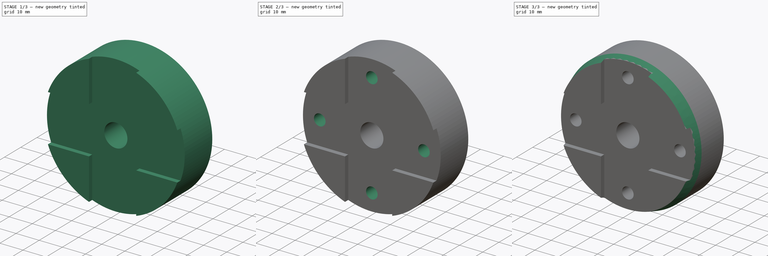
[diagram: build sequence overview — one tinted view per stage of 3, left to right]
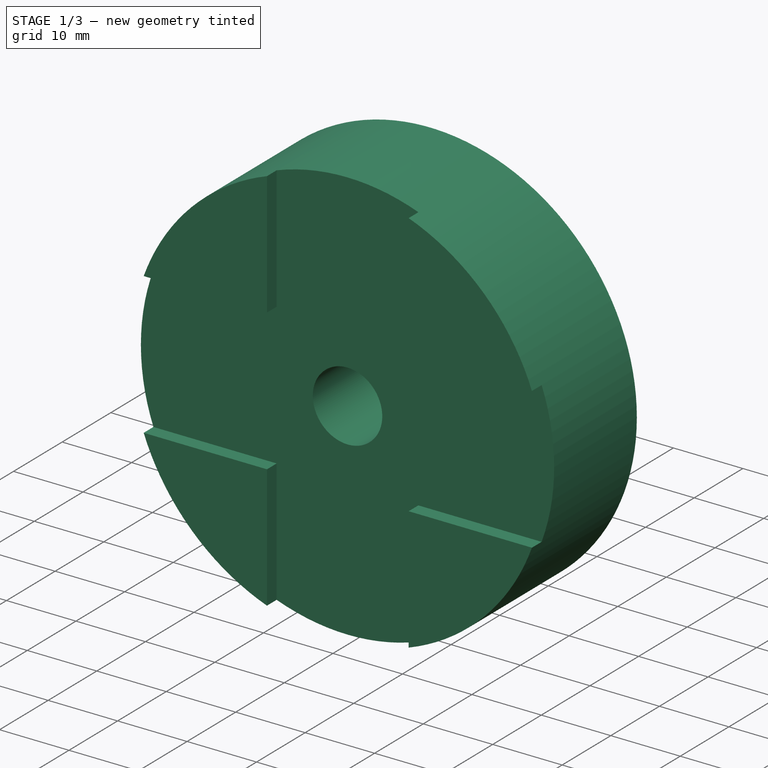
[diagram: stage 1 of 3 — iso view after this stage's code; geometry added in this stage tinted green]
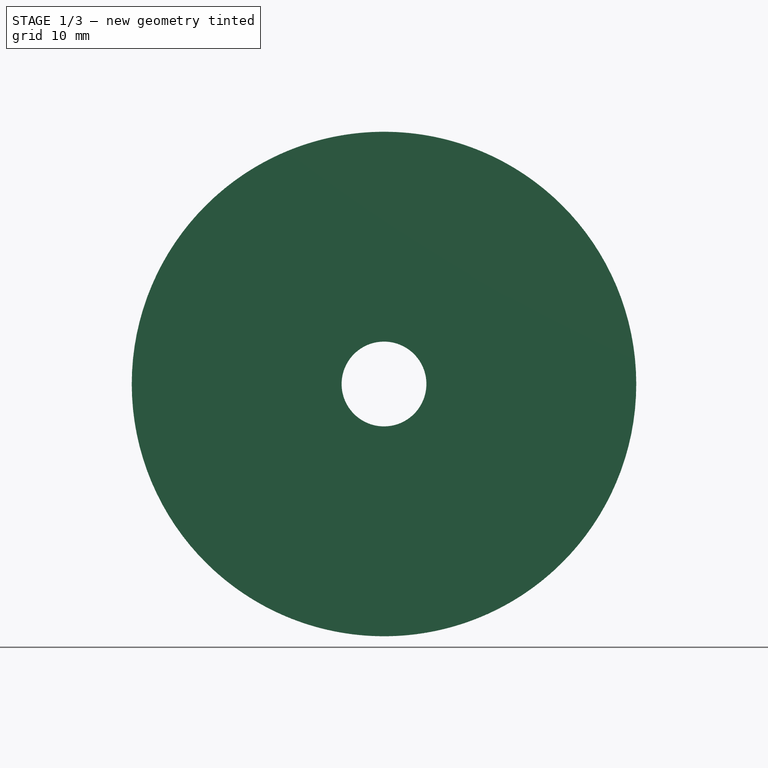
[diagram: stage 1 of 3 — front view after this stage's code; geometry added in this stage tinted green]
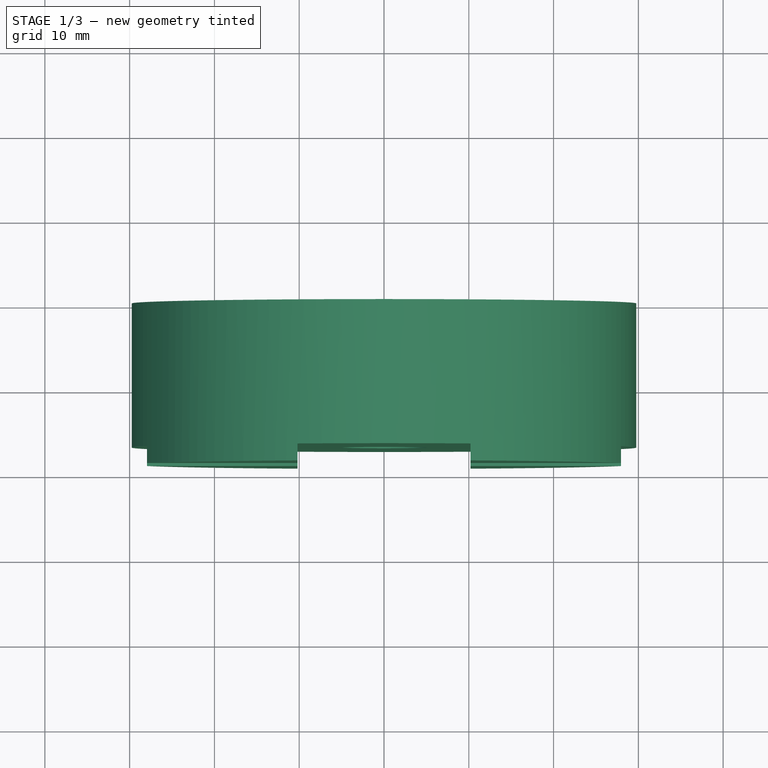
[diagram: stage 1 of 3 — top view after this stage's code; geometry added in this stage tinted green]
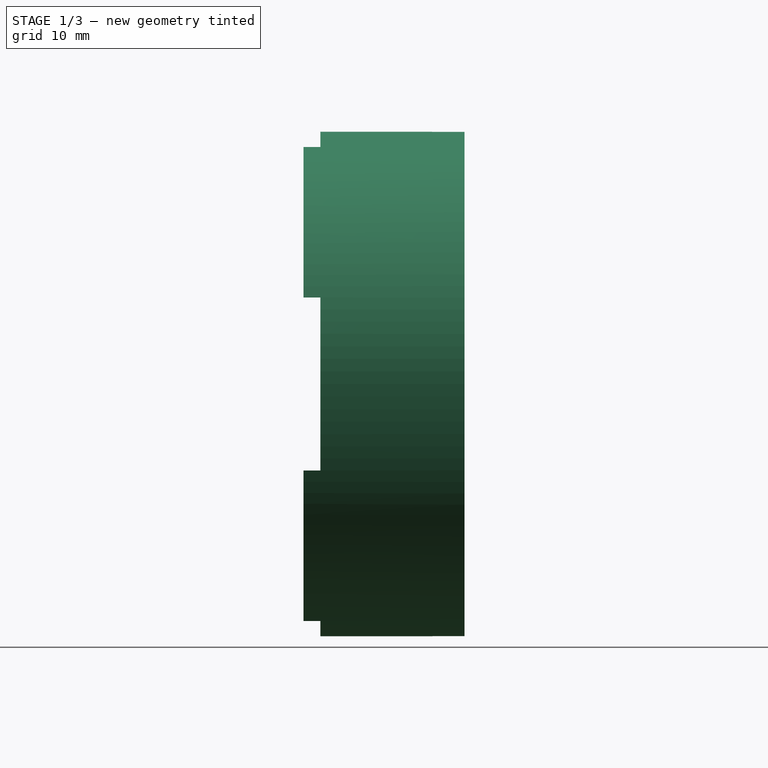
[diagram: stage 1 of 3 — right view after this stage's code; geometry added in this stage tinted green]
FCSTD DOCUMENT  (FreeCAD 0.18R4 (GitTag))
Label: Zega-Upper-Mount
License: All rights reserved
LicenseURL: http://en.wikipedia.org/wiki/All_rights_reserved
objects: Sketcher::SketchObject×7, PartDesign::Pocket×3, PartDesign::Hole×2, PartDesign::Pad×1, PartDesign::Plane×1, PartDesign::Groove×1, PartDesign::Fillet×1, PartDesign::Body×1
note: 24 computed .brp shape members not serialized (recipe doc carries the construction recipe); baked Part::Feature solids carry a one-line shape summary decoded from their .brp

FEATURE [Sketcher::SketchObject] Sketch
  MapMode = 5
  Placement = pos=(0,0,0) rot=(1,0,0;1.5708rad)
  Support = -> [XZ_Plane]
  sketch-geometry (1):
    g0: Circle CenterX=0 CenterY=0 CenterZ=0 NormalX=0 NormalY=0 NormalZ=1 AngleXU=0 Radius=29.75
  constraints (2):
    c: Coincident(g0,g-1)
    c: Diameter(g0) = 59.5
FEATURE [PartDesign::Pad] Pad
  Length = 19
  Length2 = 100
  Placement = pos=(0,0,0) rot=(1,0,0;1.5708rad)
  Profile = -> Sketch
  Type = 0
FEATURE [Sketcher::SketchObject] Sketch001
  ExternalGeometry = -> [Pad]
  MapMode = 5
  Placement = pos=(0,-19,1.27e-14) rot=(1,0,0;1.5708rad)
  Support = -> [Pad]
  sketch-geometry (20):
    g0: LineSegment StartX=-10.2 StartY=27.9468 StartZ=0 EndX=-10.2 EndY=10.2 EndZ=0
    g1: LineSegment StartX=-27.9468 StartY=10.2 StartZ=0 EndX=-10.2 EndY=10.2 EndZ=0
    g2: LineSegment StartX=10.2 StartY=27.9468 StartZ=0 EndX=10.2 EndY=10.2 EndZ=0
    g3: LineSegment StartX=10.2 StartY=10.2 StartZ=0 EndX=27.9468 EndY=10.2 EndZ=0
    g4: LineSegment StartX=10.2 StartY=-27.9468 StartZ=0 EndX=10.2 EndY=-10.2 EndZ=0
    g5: LineSegment StartX=10.2 StartY=-10.2 StartZ=0 EndX=27.9468 EndY=-10.2 EndZ=0
    g6: LineSegment StartX=-10.2 StartY=-27.9468 StartZ=0 EndX=-10.2 EndY=-10.2 EndZ=0
    g7: LineSegment StartX=-10.2 StartY=-10.2 StartZ=0 EndX=-27.9468 EndY=-10.2 EndZ=0
    g8: LineSegment [constr] StartX=-10.2 StartY=10.2 StartZ=0 EndX=10.2 EndY=10.2 EndZ=0
    g9: LineSegment [constr] StartX=-10.2 StartY=10.2 StartZ=0 EndX=-10.2 EndY=-10.2 EndZ=0
    g10: LineSegment [constr] StartX=10.2 StartY=10.2 StartZ=0 EndX=10.2 EndY=-10.2 EndZ=0
    g11: LineSegment [constr] StartX=-10.2 StartY=-10.2 StartZ=0 EndX=10.2 EndY=-10.2 EndZ=0
    g12: LineSegment StartX=-27.9468 StartY=10.2 StartZ=0 EndX=-38.8006 EndY=2.80999 EndZ=0
    g13: LineSegment StartX=-38.8006 StartY=2.80999 StartZ=0 EndX=-27.9468 EndY=-10.2 EndZ=0
    g14: LineSegment StartX=-10.2 StartY=-27.9468 StartZ=0 EndX=0.437611 EndY=-41.2925 EndZ=0
    g15: LineSegment StartX=10.2 StartY=-27.9468 StartZ=0 EndX=0.437611 EndY=-41.2925 EndZ=0
    g16: LineSegment StartX=27.9468 StartY=-10.2 StartZ=0 EndX=40.7568 EndY=-1.83807 EndZ=0
    g17: LineSegment StartX=27.9468 StartY=10.2 StartZ=0 EndX=40.7568 EndY=-1.83807 EndZ=0
    g18: LineSegment StartX=-10.2 StartY=27.9468 StartZ=0 EndX=-0.319049 EndY=40.3187 EndZ=0
    g19: LineSegment StartX=-0.319049 StartY=40.3187 StartZ=0 EndX=10.2 EndY=27.9468 EndZ=0
  constraints (46):
    c: PointOnObject(g0,g-3)
    c: Vertical(g0)
    c: PointOnObject(g1,g-3)
    c: Coincident(g1,g0)
    c: Horizontal(g1)
    c: PointOnObject(g2,g-3)
    c: Vertical(g2)
    c: Coincident(g3,g2)
    c: PointOnObject(g3,g-3)
    c: Horizontal(g3)
    c: PointOnObject(g4,g-3)
    c: Vertical(g4)
    c: Coincident(g5,g4)
    c: PointOnObject(g5,g-3)
    c: Horizontal(g5)
    c: PointOnObject(g6,g-3)
    c: Vertical(g6)
    c: Coincident(g7,g6)
    c: PointOnObject(g7,g-3)
    c: Horizontal(g7)
    c: Coincident(g8,g0)
    c: Coincident(g8,g2)
    c: Horizontal(g8)
    c: Coincident(g9,g0)
    c: Coincident(g9,g6)
    c: Vertical(g9)
    c: Coincident(g10,g2)
    c: Coincident(g10,g4)
    c: Coincident(g11,g6)
    c: Coincident(g11,g4)
    c: Symmetric(g2,g6,g-1)
    c: Symmetric(g4,g0,g-1)
    c: DistanceX(g0,g2) = 20.4
    c: DistanceY(g5,g3) = 20.4
    c: Coincident(g12,g1)
    c: Coincident(g13,g12)
    c: Coincident(g13,g7)
    c: Coincident(g14,g6)
    c: Coincident(g15,g4)
    c: Coincident(g15,g14)
    c: Coincident(g16,g5)
    c: Coincident(g17,g3)
    c: Coincident(g17,g16)
    c: Coincident(g18,g0)
    c: Coincident(g19,g18)
    c: Coincident(g19,g2)
FEATURE [PartDesign::Pocket] Pocket
  BaseFeature = -> Pad
  Length = 2
  Length2 = 100
  Placement = pos=(0,0,0) rot=(1,0,0;1.5708rad)
  Profile = -> Sketch001
  Type = 0
FEATURE [Sketcher::SketchObject] Sketch002
  MapMode = 5
  Placement = pos=(0,-17,2.05e-14) rot=(1,0,0;1.5708rad)
  Support = -> [Pocket]
  sketch-geometry (1):
    g0: Circle CenterX=0 CenterY=0 CenterZ=0 NormalX=0 NormalY=0 NormalZ=1 AngleXU=0 Radius=5
  constraints (2):
    c: Coincident(g0,g-1)
    c: Diameter(g0) = 10
FEATURE [PartDesign::Hole] Hole
  BaseFeature = -> Pocket
  Depth = 25
  DepthType = 1
  Diameter = 10
  DrillPoint = 1
  DrillPointAngle = 118
  HoleCutCountersinkAngle = 90
  HoleCutDepth = 0
  HoleCutDiameter = 0
  HoleCutType = 0
  ModelActualThread = false
  Placement = pos=(0,0,0) rot=(1,0,0;1.5708rad)
  Profile = -> Sketch002
  Tapered = false
  TaperedAngle = 90
  ThreadAngle = 0
  ThreadClass = 0
  ThreadCutOffInner = 0
  ThreadCutOffOuter = 0
  ThreadDirection = 0
  ThreadFit = 0
  ThreadPitch = 0
  ThreadSize = 0
  ThreadType = 0
  Threaded = false
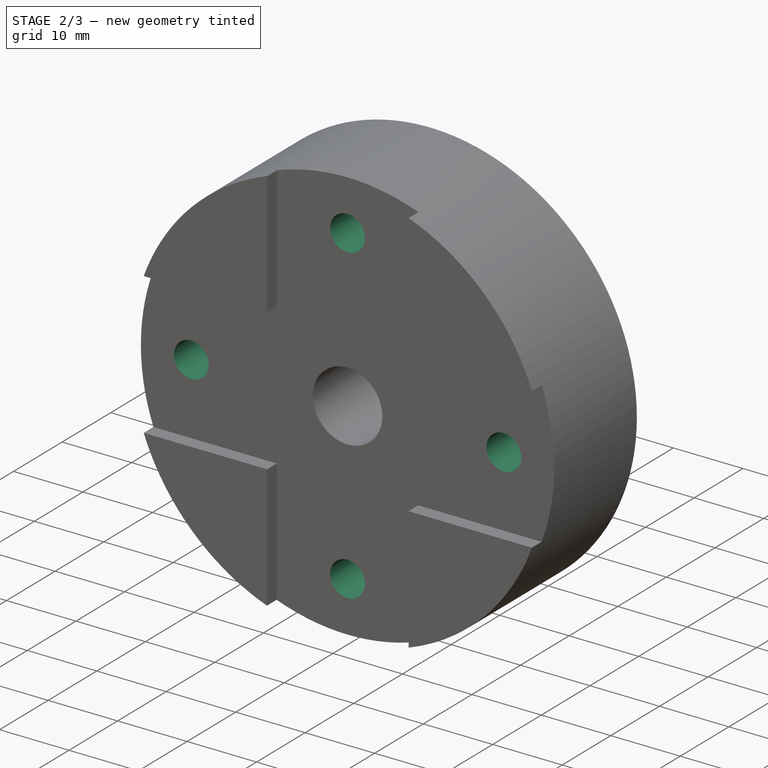
[diagram: stage 2 of 3 — iso view after this stage's code; geometry added in this stage tinted green]
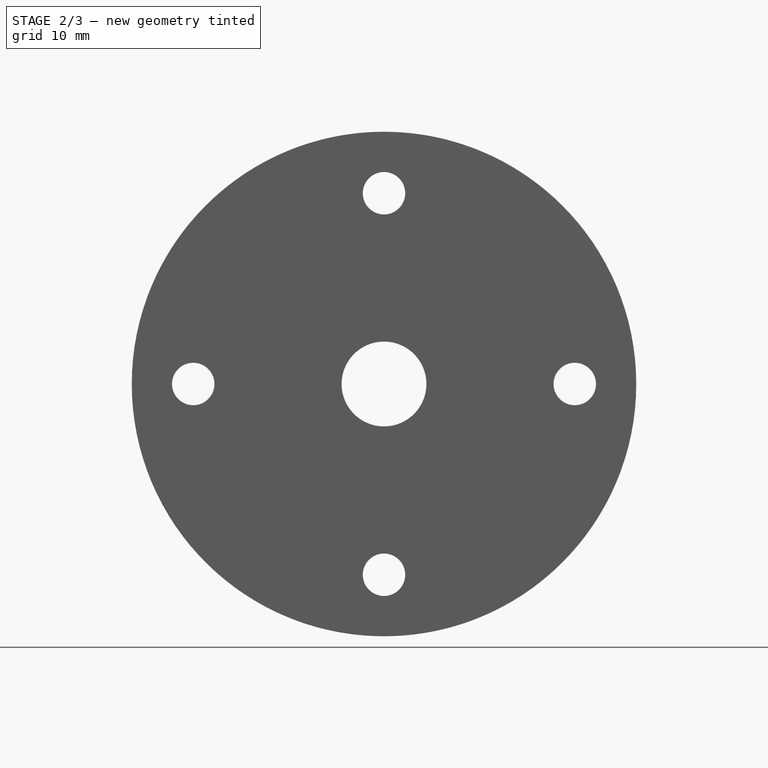
[diagram: stage 2 of 3 — front view after this stage's code; geometry added in this stage tinted green]
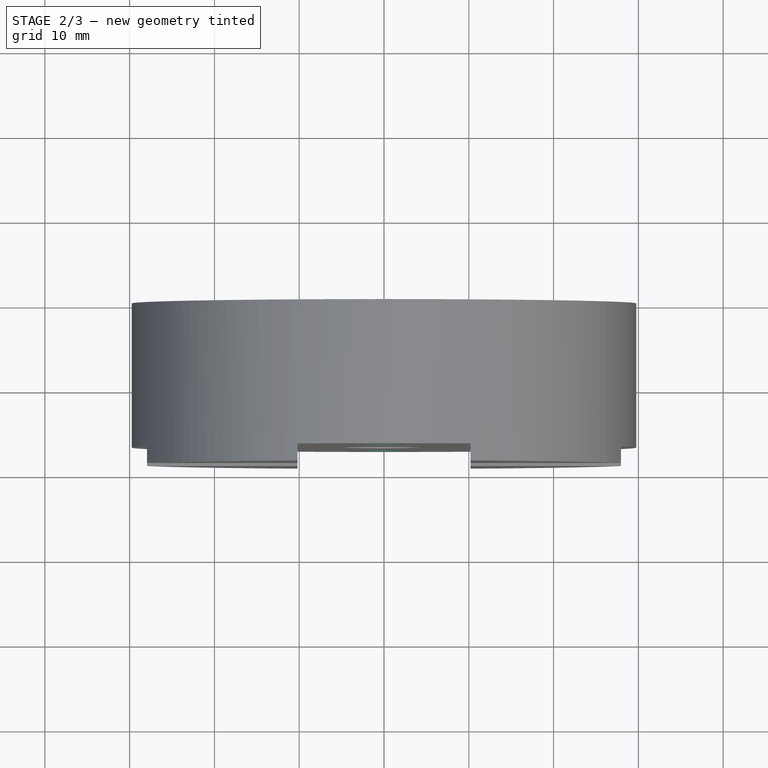
[diagram: stage 2 of 3 — top view after this stage's code; geometry added in this stage tinted green]
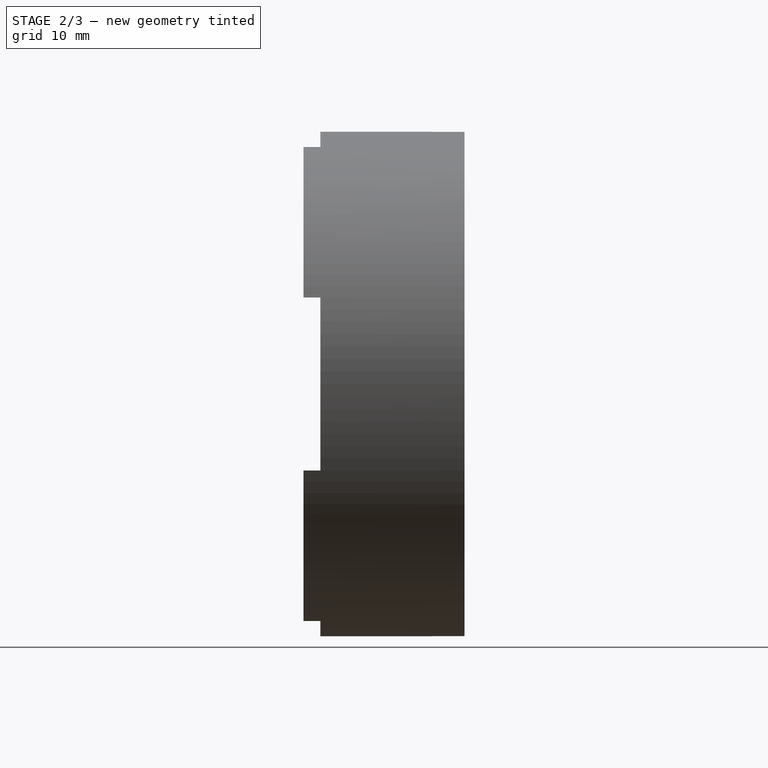
[diagram: stage 2 of 3 — right view after this stage's code; geometry added in this stage tinted green]
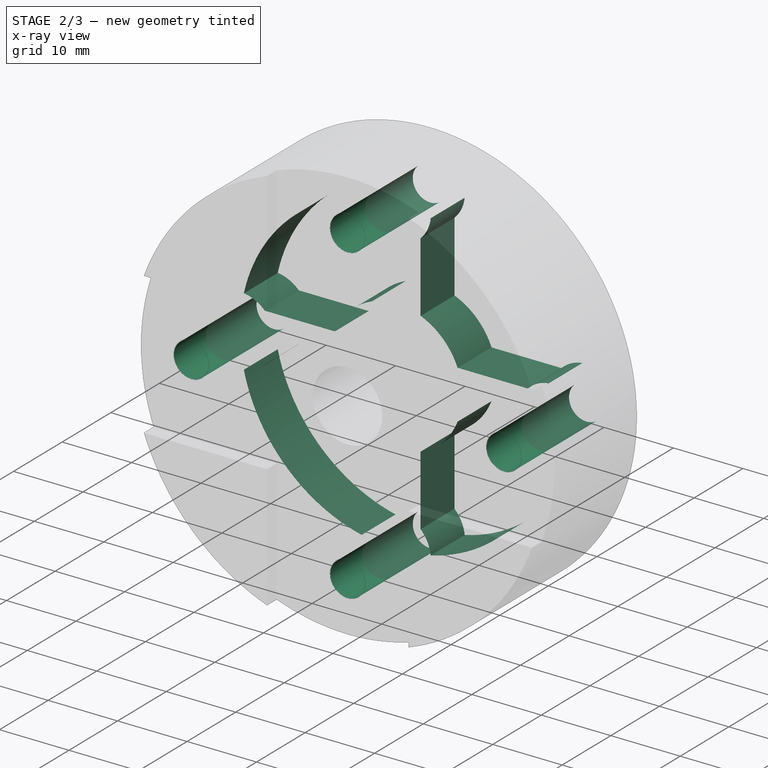
[diagram: stage 2 of 3 — x-ray composite at the iso view; earlier geometry ghosted, this stage's added geometry solid]
FEATURE [Sketcher::SketchObject] Sketch003
  MapMode = 5
  Placement = pos=(0,-17,2.81e-14) rot=(1,0,0;1.5708rad)
  Support = -> [Hole]
  sketch-geometry (4):
    g0: Circle CenterX=0 CenterY=22.5 CenterZ=0 NormalX=0 NormalY=0 NormalZ=1 AngleXU=0 Radius=2.5
    g1: Circle CenterX=22.5 CenterY=0 CenterZ=0 NormalX=0 NormalY=0 NormalZ=1 AngleXU=0 Radius=2.5
    g2: Circle CenterX=0 CenterY=-22.5 CenterZ=0 NormalX=0 NormalY=0 NormalZ=1 AngleXU=0 Radius=2.5
    g3: Circle CenterX=-22.5 CenterY=0 CenterZ=0 NormalX=0 NormalY=0 NormalZ=1 AngleXU=0 Radius=2.5
  constraints (10):
    c: PointOnObject(g0,g-2)
    c: PointOnObject(g1,g-1)
    c: Equal(g1,g0)
    c: Equal(g0,g3)
    c: Equal(g3,g2)
    c: Diameter(g1) = 5
    c: Symmetric(g1,g3,g-1)
    c: Symmetric(g0,g2,g-1)
    c: DistanceY(g2,g0) = 45
    c: DistanceX(g3,g1) = 45
FEATURE [PartDesign::Hole] Hole001
  BaseFeature = -> Hole
  Depth = 25
  DepthType = 1
  Diameter = 5
  DrillPoint = 1
  DrillPointAngle = 118
  HoleCutCountersinkAngle = 90
  HoleCutDepth = 0
  HoleCutDiameter = 0
  HoleCutType = 0
  ModelActualThread = false
  Placement = pos=(0,0,0) rot=(1,0,0;1.5708rad)
  Profile = -> Sketch003
  Tapered = false
  TaperedAngle = 90
  ThreadAngle = 0
  ThreadClass = 0
  ThreadCutOffInner = 0
  ThreadCutOffOuter = 0
  ThreadDirection = 0
  ThreadFit = 0
  ThreadPitch = 0
  ThreadSize = 0
  ThreadType = 0
  Threaded = false
FEATURE [Sketcher::SketchObject] Sketch004
  ExternalGeometry = -> [Hole001]
  MapMode = 5
  Placement = pos=(0,0,0) rot=(-1,0,0;1.5708rad)
  Support = -> [Hole001]
  sketch-geometry (36):
    g0: ArcOfCircle CenterX=0 CenterY=0 CenterZ=0 NormalX=0 NormalY=0 NormalZ=1 AngleXU=0 Radius=22.5 StartAngle=3.36427 EndAngle=4.48971
    g1: ArcOfCircle CenterX=0 CenterY=0 CenterZ=0 NormalX=0 NormalY=0 NormalZ=1 AngleXU=0 Radius=9.5 StartAngle=0.37731 EndAngle=1.19349
    g2: ArcOfCircle CenterX=0 CenterY=22.5 CenterZ=0 NormalX=0 NormalY=0 NormalZ=1 AngleXU=0 Radius=5 StartAngle=5.48779 EndAngle=6.17184
    g3: ArcOfCircle CenterX=-22.5 CenterY=2.1e-15 CenterZ=0 NormalX=0 NormalY=0 NormalZ=1 AngleXU=0 Radius=5 StartAngle=4.82373 EndAngle=5.50779
    g4: ArcOfCircle CenterX=22.5 CenterY=2.1e-15 CenterZ=0 NormalX=0 NormalY=0 NormalZ=1 AngleXU=0 Radius=5 StartAngle=3.91699 EndAngle=4.60105
    g5: ArcOfCircle CenterX=0 CenterY=-22.5 CenterZ=0 NormalX=0 NormalY=0 NormalZ=1 AngleXU=0 Radius=5 StartAngle=2.34619 EndAngle=3.03025
    g6: LineSegment StartX=-3.5 StartY=-8.83176 StartZ=0 EndX=-3.5 EndY=-18.9293 EndZ=0
    g7: LineSegment StartX=3.5 StartY=-8.83176 StartZ=0 EndX=3.5 EndY=-18.9293 EndZ=0
    g8: LineSegment StartX=8.83176 StartY=-3.5 StartZ=0 EndX=18.9293 EndY=-3.5 EndZ=0
    g9: LineSegment StartX=8.83176 StartY=3.5 StartZ=0 EndX=18.9293 EndY=3.5 EndZ=0
    g10: LineSegment StartX=-3.5 StartY=8.83176 StartZ=0 EndX=-3.5 EndY=18.9293 EndZ=0
    g11: LineSegment StartX=3.5 StartY=18.9293 StartZ=0 EndX=3.5 EndY=8.83176 EndZ=0
    g12: LineSegment StartX=-18.9293 StartY=3.5 StartZ=0 EndX=-8.83176 EndY=3.5 EndZ=0
    g13: LineSegment StartX=-18.9293 StartY=-3.5 StartZ=0 EndX=-8.83176 EndY=-3.5 EndZ=0
    g14: GeomPoint X=-21.9444 Y=-4.96904 Z=0
    g15: GeomPoint X=-4.96904 Y=21.9444 Z=0
    g16: GeomPoint X=4.96904 Y=21.9444 Z=0
    g17: GeomPoint X=21.9444 Y=4.96904 Z=0
    g18: GeomPoint X=21.9444 Y=-4.96904 Z=0
    g19: GeomPoint X=4.96904 Y=-21.9444 Z=0
    g20: GeomPoint X=-4.96904 Y=-21.9444 Z=0
    g21: GeomPoint X=-21.9444 Y=4.96904 Z=0
    g22: ArcOfCircle CenterX=-22.5 CenterY=2.1e-15 CenterZ=0 NormalX=0 NormalY=0 NormalZ=1 AngleXU=0 Radius=5 StartAngle=0.775397 EndAngle=1.45946
    g23: LineSegment [constr] StartX=-3.5 StartY=8.83176 StartZ=0 EndX=-3.5 EndY=-8.83176 EndZ=0
    g24: LineSegment [constr] StartX=-8.83176 StartY=3.5 StartZ=0 EndX=8.83176 EndY=3.5 EndZ=0
    g25: ArcOfCircle CenterX=0 CenterY=0 CenterZ=0 NormalX=0 NormalY=0 NormalZ=1 AngleXU=0 Radius=22.5 StartAngle=0.222682 EndAngle=1.34811
    g26: ArcOfCircle CenterX=22.5 CenterY=2.1e-15 CenterZ=0 NormalX=0 NormalY=0 NormalZ=1 AngleXU=0 Radius=5 StartAngle=1.68214 EndAngle=2.3662
    g27: ArcOfCircle CenterX=0 CenterY=0 CenterZ=0 NormalX=0 NormalY=0 NormalZ=1 AngleXU=0 Radius=9.5 StartAngle=5.0897 EndAngle=5.90588
    g28: ArcOfCircle CenterX=0 CenterY=-22.5 CenterZ=0 NormalX=0 NormalY=0 NormalZ=1 AngleXU=0 Radius=5 StartAngle=0.111341 EndAngle=0.795399
    g29: ArcOfCircle CenterX=0 CenterY=0 CenterZ=0 NormalX=0 NormalY=0 NormalZ=1 AngleXU=0 Radius=22.5 StartAngle=4.93507 EndAngle=6.0605
    g30: ArcOfCircle CenterX=0 CenterY=0 CenterZ=0 NormalX=0 NormalY=0 NormalZ=1 AngleXU=0 Radius=9.5 StartAngle=3.5189 EndAngle=4.33508
    g31: ArcOfCircle CenterX=0 CenterY=0 CenterZ=0 NormalX=0 NormalY=0 NormalZ=1 AngleXU=0 Radius=9.5 StartAngle=1.94811 EndAngle=2.76428
    g32: ArcOfCircle CenterX=0 CenterY=0 CenterZ=0 NormalX=0 NormalY=0 NormalZ=1 AngleXU=0 Radius=22.5 StartAngle=1.79348 EndAngle=2.91891
    g33: ArcOfCircle CenterX=0 CenterY=22.5 CenterZ=0 NormalX=0 NormalY=0 NormalZ=1 AngleXU=0 Radius=5 StartAngle=3.25293 EndAngle=3.93699
    g34: LineSegment [constr] StartX=-8.83176 StartY=-3.5 StartZ=0 EndX=8.83176 EndY=-3.5 EndZ=0
    g35: LineSegment [constr] StartX=3.5 StartY=8.83176 StartZ=0 EndX=3.5 EndY=-8.83176 EndZ=0
  constraints (95):
    c: PointOnObject(g-3,g0)
    c: Coincident(g2,g-3)
    c: Coincident(g3,g-5)
    c: Coincident(g4,g-6)
    c: Coincident(g5,g-4)
    c: Equal(g4,g2)
    c: Equal(g2,g3)
    c: Equal(g3,g5)
    c: Diameter(g4) = 10
    c: PointOnObject(g23,g1)
    c: Vertical(g11)
    c: Horizontal(g12)
    c: Horizontal(g13)
    c: Horizontal(g9)
    c: Horizontal(g8)
    c: Vertical(g10)
    c: PointOnObject(g14,g3)
    c: PointOnObject(g15,g0)
    c: PointOnObject(g16,g0)
    c: PointOnObject(g17,g0)
    c: PointOnObject(g19,g0)
    c: PointOnObject(g20,g0)
    c: PointOnObject(g14,g0)
    c: PointOnObject(g21,g0)
    c: PointOnObject(g21,g3)
    c: PointOnObject(g20,g5)
    c: PointOnObject(g19,g5)
    c: PointOnObject(g18,g4)
    c: PointOnObject(g17,g4)
    c: PointOnObject(g16,g2)
    c: PointOnObject(g15,g2)
    c: PointOnObject(g18,g0)
    c: Coincident(g0,g3)
    c: Coincident(g32,g22)
    c: Equal(g3,g22)
    c: Coincident(g3,g13)
    c: Coincident(g22,g12)
    c: Coincident(g3,g22)
    c: DistanceY(g3,g12) = 7
    c: Coincident(g1,g0)
    c: Coincident(g0,g-1)
    c: Vertical(g7)
    c: Vertical(g6)
    c: Diameter(g1) = 19
    c: Coincident(g23,g6)
    c: Vertical(g23)
    c: Horizontal(g24)
    c: Equal(g0,g25)
    c: Coincident(g0,g25)
    c: Coincident(g4,g8)
    c: Coincident(g26,g9)
    c: Equal(g4,g26)
    c: Coincident(g4,g29)
    c: Coincident(g26,g25)
    c: Coincident(g4,g26)
    c: Coincident(g1,g9)
    c: Coincident(g27,g8)
    c: Coincident(g27,g7)
    c: Coincident(g1,g27)
    c: Coincident(g5,g6)
    c: Coincident(g28,g7)
    c: Equal(g5,g28)
    c: Coincident(g5,g28)
    c: Equal(g0,g29)
    c: Coincident(g0,g5)
    c: Coincident(g29,g28)
    c: Coincident(g0,g29)
    c: Equal(g1,g30)
    c: Coincident(g31,g12)
    c: Coincident(g1,g30)
    c: PointOnObject(g1,g11)
    c: Coincident(g31,g10)
    c: Coincident(g1,g31)
    c: Coincident(g2,g11)
    c: Coincident(g33,g10)
    c: Equal(g25,g32)
    c: Coincident(g25,g32)
    c: Equal(g2,g33)
    c: Coincident(g2,g25)
    c: Coincident(g33,g32)
    c: Coincident(g2,g33)
    c: Coincident(g23,g10)
    c: Symmetric(g11,g10,g-2)
    c: Coincident(g24,g1)
    c: Coincident(g12,g24)
    c: Coincident(g13,g30)
    c: Coincident(g34,g13)
    c: Coincident(g34,g8)
    c: Symmetric(g8,g1,g-1)
    c: Horizontal(g34)
    c: DistanceX(g10,g2) = 7
    c: Coincident(g6,g30)
    c: Coincident(g35,g1)
    c: Coincident(g35,g7)
    c: Vertical(g35)
FEATURE [PartDesign::Pocket] Pocket001
  BaseFeature = -> Hole001
  Length = 7
  Length2 = 100
  Placement = pos=(0,0,0) rot=(1,0,0;1.5708rad)
  Profile = -> Sketch004
  Type = 0
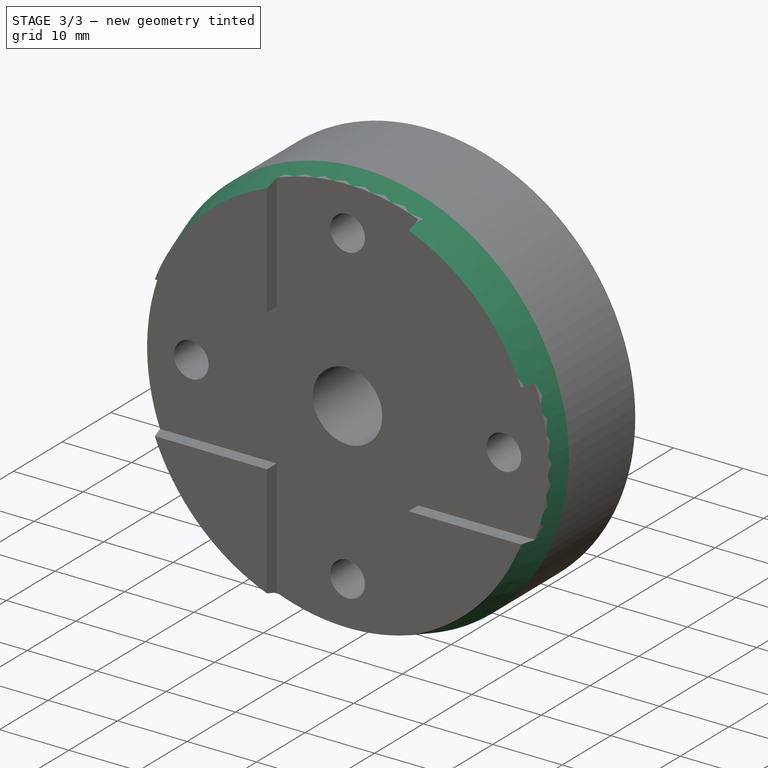
[diagram: stage 3 of 3 — iso view after this stage's code; geometry added in this stage tinted green]
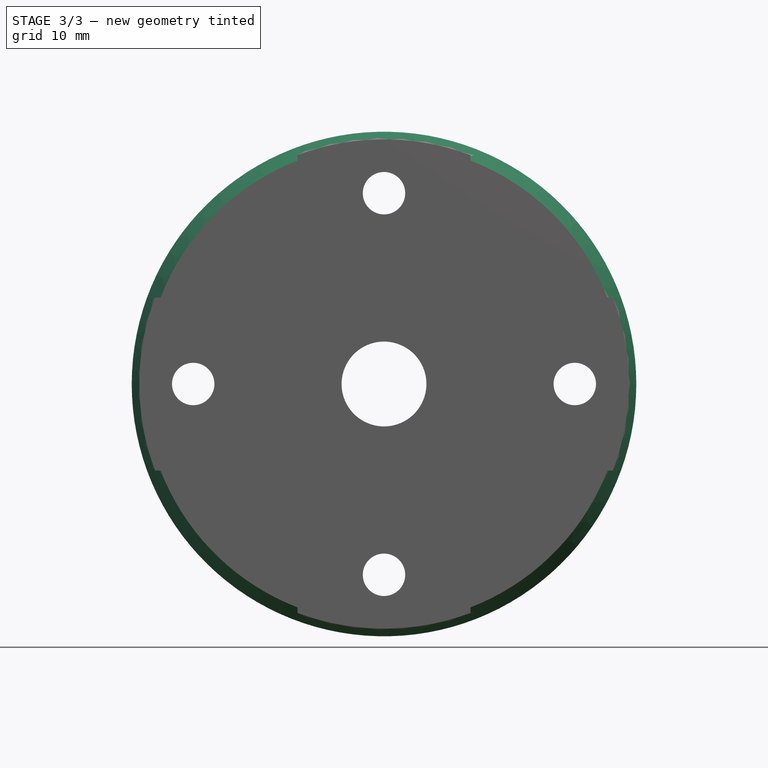
[diagram: stage 3 of 3 — front view after this stage's code; geometry added in this stage tinted green]
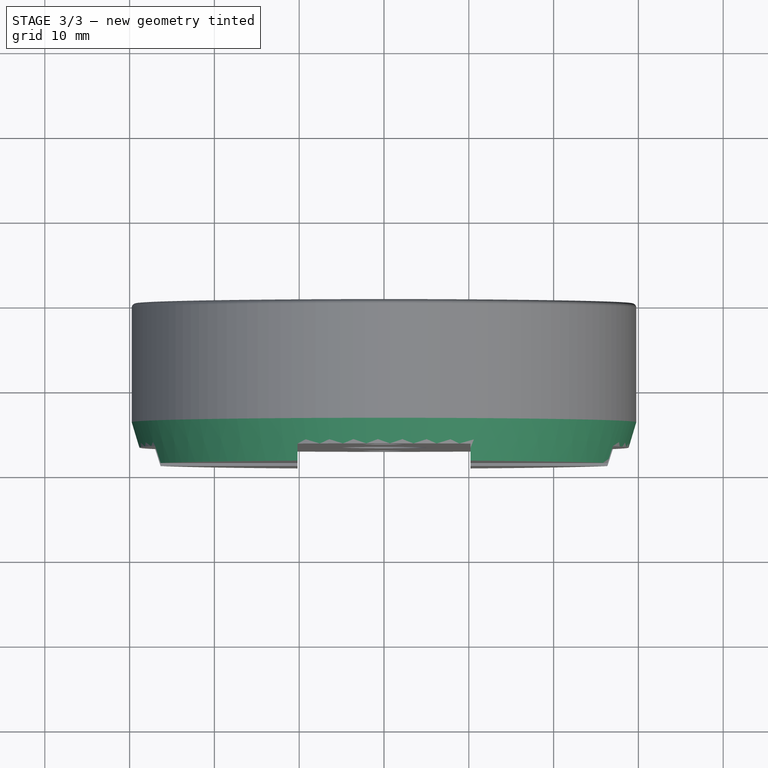
[diagram: stage 3 of 3 — top view after this stage's code; geometry added in this stage tinted green]
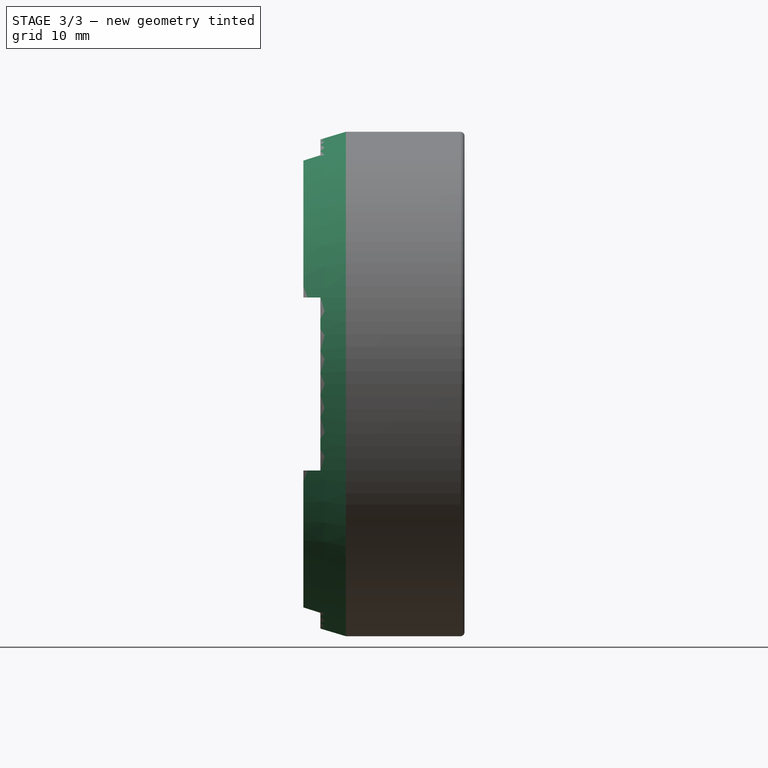
[diagram: stage 3 of 3 — right view after this stage's code; geometry added in this stage tinted green]
FEATURE [Sketcher::SketchObject] Sketch005
  MapMode = 5
  Placement = pos=(0,0,0) rot=(-1,0,0;1.5708rad)
  Support = -> [Pocket001]
  sketch-geometry (1):
    g0: Circle CenterX=0 CenterY=0 CenterZ=0 NormalX=0 NormalY=0 NormalZ=1 AngleXU=0 Radius=7
  constraints (2):
    c: Coincident(g0,g-1)
    c: Diameter(g0) = 14
FEATURE [PartDesign::Pocket] Pocket002
  BaseFeature = -> Pocket001
  Length = 2
  Length2 = 100
  Placement = pos=(0,0,0) rot=(1,0,0;1.5708rad)
  Profile = -> Sketch005
  Type = 0
FEATURE [PartDesign::Plane] DatumPlane
  AttachmentOffset = pos=(0,0,0) rot=(1,0,0;1.5708rad)
  Length = 67.8078
  MapMode = 7
  Placement = pos=(29.75,0,0) rot=(0,1,0;3.14159rad)
  ResizeMode = 0
  Support = -> [Pocket002]
  Width = 37.3078
FEATURE [Sketcher::SketchObject] Sketch006
  ExternalGeometry = -> [Pocket002]
  MapMode = 5
  Placement = pos=(29.75,0,0) rot=(0,1,0;3.14159rad)
  Support = -> [DatumPlane]
  sketch-geometry (3):
    g0: LineSegment StartX=0 StartY=-14 StartZ=0 EndX=1.5 EndY=-19 EndZ=0
    g1: LineSegment StartX=0 StartY=-19 StartZ=0 EndX=1.5 EndY=-19 EndZ=0
    g2: LineSegment StartX=0 StartY=-19 StartZ=0 EndX=0 EndY=-14 EndZ=0
  constraints (9):
    c: PointOnObject(g0,g-3)
    c: PointOnObject(g1,g-2)
    c: Coincident(g1,g0)
    c: Horizontal(g1)
    c: DistanceY(g-3,g0) = 3
    c: DistanceX(g1,g1) = 1.5
    c: DistanceY(g1,g0) = 5
    c: Coincident(g2,g1)
    c: Coincident(g2,g0)
FEATURE [PartDesign::Groove] Groove
  Angle = 360
  Axis = (1e-16,1,-1e-16)
  Base = (0,0,0)
  BaseFeature = -> Pocket002
  Placement = pos=(0,0,0) rot=(1,0,0;1.5708rad)
  Profile = -> Sketch006
  ReferenceAxis = -> Y_Axis
FEATURE [PartDesign::Fillet] Fillet
  Base = -> Groove [Edge3]
  BaseFeature = -> Groove
  Placement = pos=(0,0,0) rot=(1,0,0;1.5708rad)
  Radius = 0.5
FEATURE [PartDesign::Body] Body
  Group = -> [Sketch,Pad,Sketch001,Pocket,Sketch002,Hole,Sketch003,Hole001,Sketch004,Pocket001,Sketch005,Pocket002,DatumPlane,Sketch006,Groove,Fillet]
  Origin = -> Origin
  Tip = -> Fillet
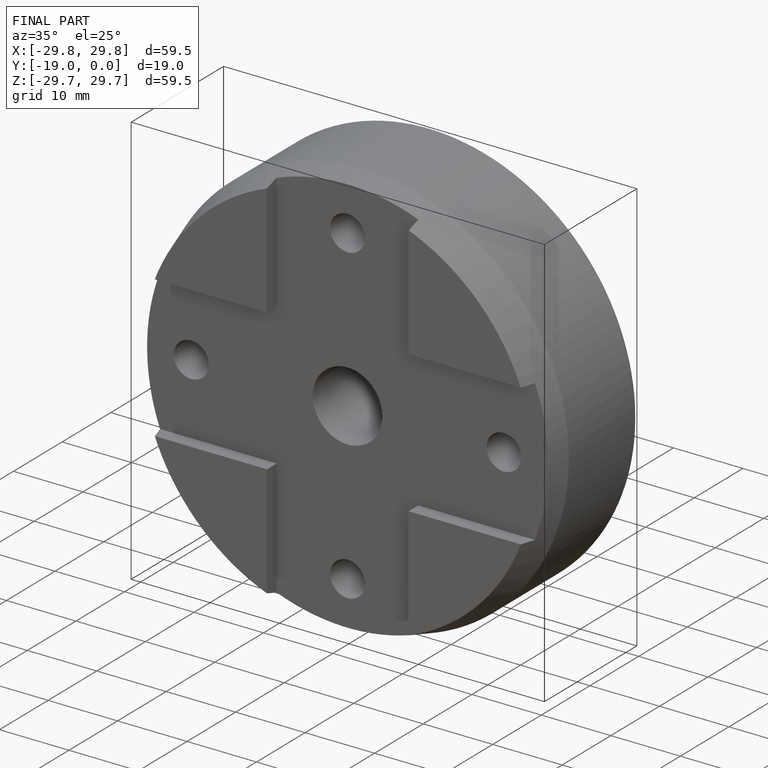
[diagram: finished part — iso view with bounding-box wireframe]
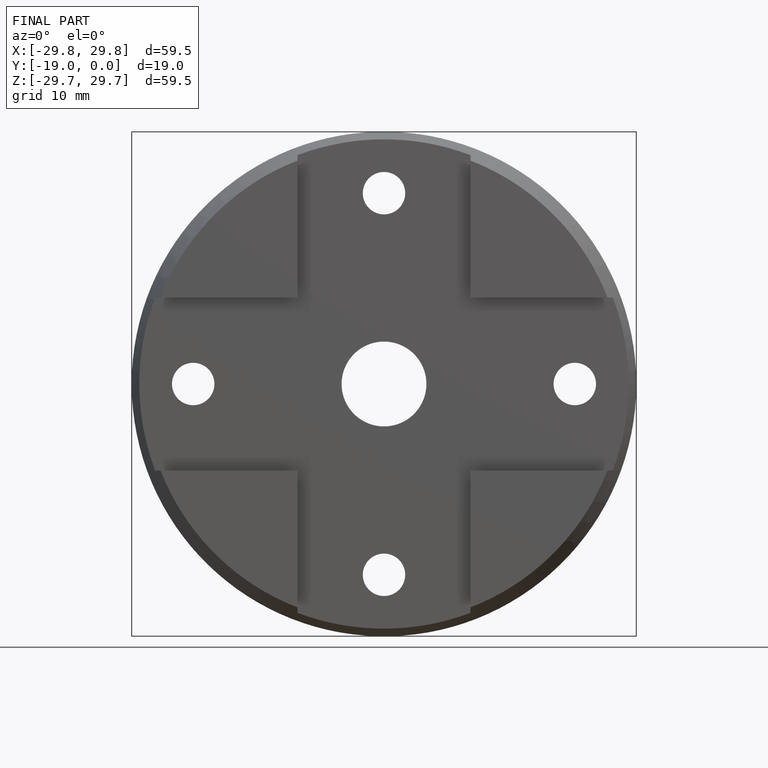
[diagram: finished part — front view with bounding-box wireframe]
